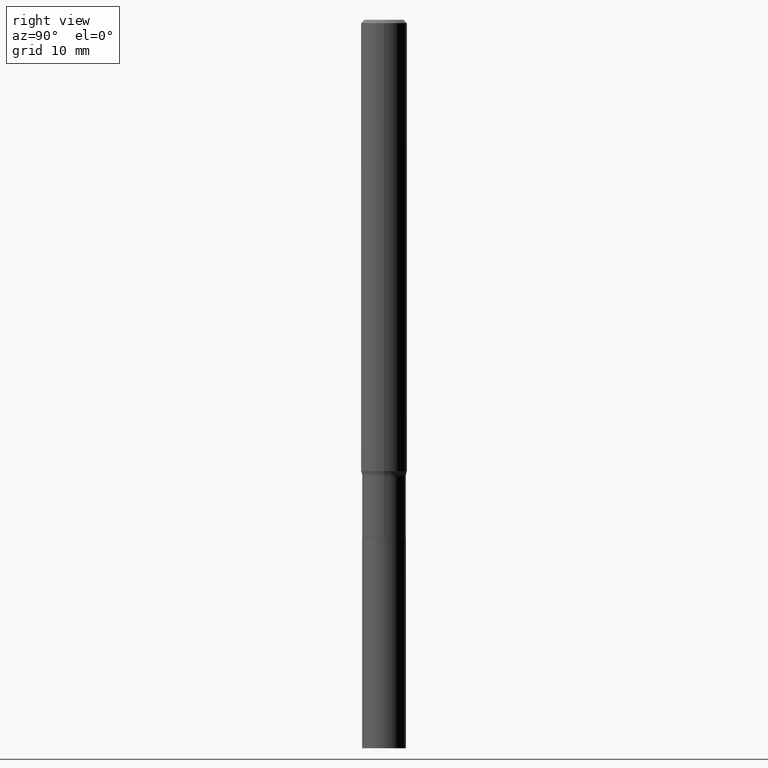
[diagram: clean part render]
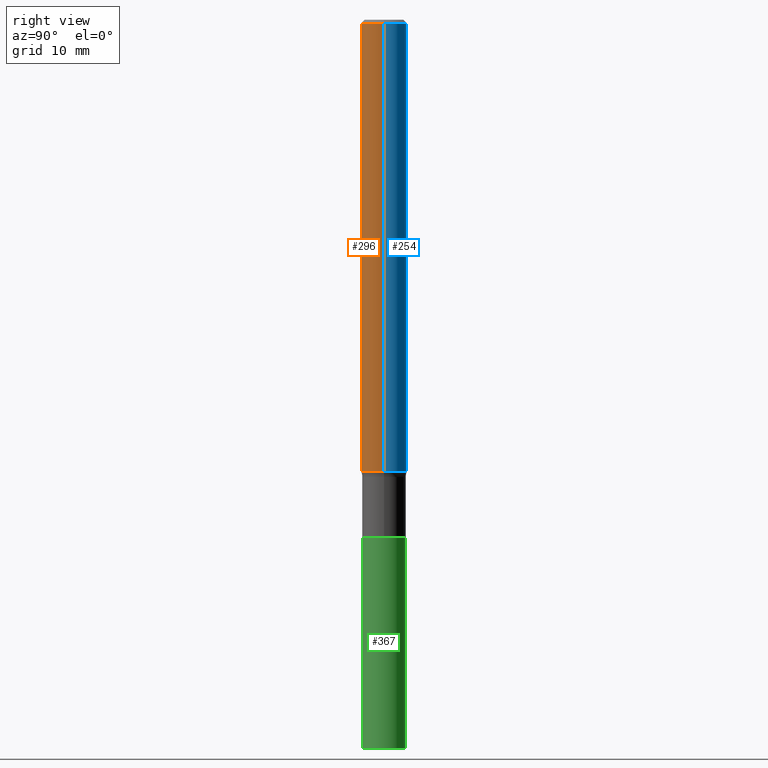
[diagram: same view with three faces highlighted in distinct colors, each labeled with its STEP entity id]
A machine part, right view with three faces highlighted in distinct colors.
Their STEP definitions:

[orange] entity #296 — the highlighted cylindrical surface (edge-blend (fillet) strip) has radius 2.9997 mm, axis along (-0, 0, 1).
#7 = DIRECTION ( 'NONE',  ( -2.445468806185136597E-29, 3.491481338843145583E-15, 1.000000000000000000 ) ) ;
#8 = CIRCLE ( 'NONE', #416, 0.1181000000000003020 ) ;
#30 = EDGE_LOOP ( 'NONE', ( #427, #458, #262, #256 ) ) ;
#31 = DIRECTION ( 'NONE',  ( -2.445468806185136877E-29, 3.491481338843145188E-15, 1.000000000000000000 ) ) ;
#40 = CYLINDRICAL_SURFACE ( 'NONE', #89, 0.1181000000000001632 ) ;
#42 = CARTESIAN_POINT ( 'NONE',  ( 5.667000345357114307E-29, -8.090974582455619643E-15, -2.317347222350170988 ) ) ;
#64 = VECTOR ( 'NONE', #31, 39.37007874015748143 ) ;
#73 = CARTESIAN_POINT ( 'NONE',  ( 0.1181000000000001632, -8.246878922347493473E-16, 5.758764772215008848E-30 ) ) ;
#89 = AXIS2_PLACEMENT_3D ( 'NONE', #339, #7, #222 ) ;
#95 = CIRCLE ( 'NONE', #292, 0.1181000000000000105 ) ;
#108 = CARTESIAN_POINT ( 'NONE',  ( -0.1181000000000001632, 8.391509709326794790E-16, -5.809262341591051491E-30 ) ) ;
#137 = VERTEX_POINT ( 'NONE', #147 ) ;
#145 = CARTESIAN_POINT ( 'NONE',  ( -0.1181000000000003020, -7.251823611522939079E-15, -2.317347222350170988 ) ) ;
#147 = CARTESIAN_POINT ( 'NONE',  ( 0.1181000000000003020, -8.915662474690369483E-15, -2.317347222350170988 ) ) ;
#161 = EDGE_CURVE ( 'NONE', #361, #240, #95, .T. ) ;
#197 = DIRECTION ( 'NONE',  ( -2.445468806185136597E-29, 3.491481338843145583E-15, 1.000000000000000000 ) ) ;
#222 = DIRECTION ( 'NONE',  ( 1.000000000000000000, -6.982962677686267499E-15, 4.876176775795936353E-29 ) ) ;
#240 = VERTEX_POINT ( 'NONE', #341 ) ;
#256 = ORIENTED_EDGE ( 'NONE', *, *, #161, .F. ) ;
#262 = ORIENTED_EDGE ( 'NONE', *, *, #278, .T. ) ;
#268 = EDGE_CURVE ( 'NONE', #366, #361, #305, .T. ) ;
#278 = EDGE_CURVE ( 'NONE', #137, #240, #392, .T. ) ;
#290 = DIRECTION ( 'NONE',  ( 1.000000000000000000, -6.982962677686271444E-15, 0.000000000000000000 ) ) ;
#292 = AXIS2_PLACEMENT_3D ( 'NONE', #382, #464, #418 ) ;
#296 = ADVANCED_FACE ( 'NONE', ( #335 ), #40, .T. ) ;
#304 = CARTESIAN_POINT ( 'NONE',  ( -0.1181000000000000105, -3.237262116253930779E-15, -0.01771500000000011607 ) ) ;
#305 = LINE ( 'NONE', #108, #64 ) ;
#318 = EDGE_CURVE ( 'NONE', #366, #137, #8, .T. ) ;
#335 = FACE_OUTER_BOUND ( 'NONE', #30, .T. ) ;
#339 = CARTESIAN_POINT ( 'NONE',  ( 0.000000000000000000, 0.000000000000000000, 0.000000000000000000 ) ) ;
#341 = CARTESIAN_POINT ( 'NONE',  ( 0.1181000000000000105, -8.865394841523548556E-16, -0.01771500000000011607 ) ) ;
#361 = VERTEX_POINT ( 'NONE', #304 ) ;
#366 = VERTEX_POINT ( 'NONE', #145 ) ;
#369 = DIRECTION ( 'NONE',  ( -2.445468806185136877E-29, 3.491481338843145188E-15, 1.000000000000000000 ) ) ;
#382 = CARTESIAN_POINT ( 'NONE',  ( 4.332147990156998495E-31, -6.185159191760672860E-17, -0.01771500000000011607 ) ) ;
#392 = LINE ( 'NONE', #73, #425 ) ;
#416 = AXIS2_PLACEMENT_3D ( 'NONE', #42, #197, #290 ) ;
#418 = DIRECTION ( 'NONE',  ( 1.000000000000000000, -6.982962677686265922E-15, 0.000000000000000000 ) ) ;
#425 = VECTOR ( 'NONE', #369, 39.37007874015748143 ) ;
#427 = ORIENTED_EDGE ( 'NONE', *, *, #268, .F. ) ;
#458 = ORIENTED_EDGE ( 'NONE', *, *, #318, .T. ) ;
#464 = DIRECTION ( 'NONE',  ( -2.445468806185136597E-29, 3.491481338843145583E-15, 1.000000000000000000 ) ) ;

[blue] entity #254 — the highlighted cylindrical surface (edge-blend (fillet) strip) has radius 2.9997 mm, axis along (-0, 0, 1).
#31 = DIRECTION ( 'NONE',  ( -2.445468806185136877E-29, 3.491481338843145188E-15, 1.000000000000000000 ) ) ;
#39 = DIRECTION ( 'NONE',  ( 1.000000000000000000, -6.982962677686267499E-15, 4.876176775795936353E-29 ) ) ;
#63 = ORIENTED_EDGE ( 'NONE', *, *, #245, .F. ) ;
#64 = VECTOR ( 'NONE', #31, 39.37007874015748143 ) ;
#73 = CARTESIAN_POINT ( 'NONE',  ( 0.1181000000000001632, -8.246878922347493473E-16, 5.758764772215008848E-30 ) ) ;
#87 = CARTESIAN_POINT ( 'NONE',  ( 5.667000345357114307E-29, -8.090974582455619643E-15, -2.317347222350170988 ) ) ;
#108 = CARTESIAN_POINT ( 'NONE',  ( -0.1181000000000001632, 8.391509709326794790E-16, -5.809262341591051491E-30 ) ) ;
#126 = EDGE_CURVE ( 'NONE', #137, #366, #215, .T. ) ;
#137 = VERTEX_POINT ( 'NONE', #147 ) ;
#138 = AXIS2_PLACEMENT_3D ( 'NONE', #328, #358, #39 ) ;
#145 = CARTESIAN_POINT ( 'NONE',  ( -0.1181000000000003020, -7.251823611522939079E-15, -2.317347222350170988 ) ) ;
#146 = ORIENTED_EDGE ( 'NONE', *, *, #126, .T. ) ;
#147 = CARTESIAN_POINT ( 'NONE',  ( 0.1181000000000003020, -8.915662474690369483E-15, -2.317347222350170988 ) ) ;
#156 = ORIENTED_EDGE ( 'NONE', *, *, #278, .F. ) ;
#187 = FACE_OUTER_BOUND ( 'NONE', #294, .T. ) ;
#207 = AXIS2_PLACEMENT_3D ( 'NONE', #87, #235, #337 ) ;
#215 = CIRCLE ( 'NONE', #207, 0.1181000000000003020 ) ;
#235 = DIRECTION ( 'NONE',  ( -2.445468806185136597E-29, 3.491481338843145583E-15, 1.000000000000000000 ) ) ;
#240 = VERTEX_POINT ( 'NONE', #341 ) ;
#245 = EDGE_CURVE ( 'NONE', #240, #361, #434, .T. ) ;
#254 = ADVANCED_FACE ( 'NONE', ( #187 ), #438, .T. ) ;
#264 = CARTESIAN_POINT ( 'NONE',  ( 4.332147990156998495E-31, -6.185159191760672860E-17, -0.01771500000000011607 ) ) ;
#268 = EDGE_CURVE ( 'NONE', #366, #361, #305, .T. ) ;
#278 = EDGE_CURVE ( 'NONE', #137, #240, #392, .T. ) ;
#294 = EDGE_LOOP ( 'NONE', ( #146, #463, #63, #156 ) ) ;
#304 = CARTESIAN_POINT ( 'NONE',  ( -0.1181000000000000105, -3.237262116253930779E-15, -0.01771500000000011607 ) ) ;
#305 = LINE ( 'NONE', #108, #64 ) ;
#328 = CARTESIAN_POINT ( 'NONE',  ( 0.000000000000000000, 0.000000000000000000, 0.000000000000000000 ) ) ;
#337 = DIRECTION ( 'NONE',  ( 1.000000000000000000, -6.982962677686271444E-15, 0.000000000000000000 ) ) ;
#341 = CARTESIAN_POINT ( 'NONE',  ( 0.1181000000000000105, -8.865394841523548556E-16, -0.01771500000000011607 ) ) ;
#358 = DIRECTION ( 'NONE',  ( -2.445468806185136597E-29, 3.491481338843145583E-15, 1.000000000000000000 ) ) ;
#361 = VERTEX_POINT ( 'NONE', #304 ) ;
#366 = VERTEX_POINT ( 'NONE', #145 ) ;
#369 = DIRECTION ( 'NONE',  ( -2.445468806185136877E-29, 3.491481338843145188E-15, 1.000000000000000000 ) ) ;
#380 = AXIS2_PLACEMENT_3D ( 'NONE', #264, #396, #399 ) ;
#392 = LINE ( 'NONE', #73, #425 ) ;
#396 = DIRECTION ( 'NONE',  ( -2.445468806185136597E-29, 3.491481338843145583E-15, 1.000000000000000000 ) ) ;
#399 = DIRECTION ( 'NONE',  ( 1.000000000000000000, -6.982962677686265922E-15, 0.000000000000000000 ) ) ;
#425 = VECTOR ( 'NONE', #369, 39.37007874015748143 ) ;
#434 = CIRCLE ( 'NONE', #380, 0.1181000000000000105 ) ;
#438 = CYLINDRICAL_SURFACE ( 'NONE', #138, 0.1181000000000001632 ) ;
#463 = ORIENTED_EDGE ( 'NONE', *, *, #268, .T. ) ;

[green] entity #367 — the highlighted cylindrical surface (edge-blend (fillet) strip) has radius 2.8499 mm, axis along (-0, 0, 1).
#15 = ORIENTED_EDGE ( 'NONE', *, *, #219, .F. ) ;
#18 = CARTESIAN_POINT ( 'NONE',  ( -7.834884124363077914E-16, -0.1122000000000130809, -3.740200000000000191 ) ) ;
#34 = VERTEX_POINT ( 'NONE', #400 ) ;
#54 = DIRECTION ( 'NONE',  ( -2.439359682835014967E-29, 3.500229951190227507E-15, 1.000000000000000000 ) ) ;
#61 = EDGE_CURVE ( 'NONE', #266, #34, #306, .T. ) ;
#69 = DIRECTION ( 'NONE',  ( -2.439359682835014967E-29, 3.500229951190227507E-15, 1.000000000000000000 ) ) ;
#76 = DIRECTION ( 'NONE',  ( -2.439359682835014967E-29, 3.500229951190227901E-15, 1.000000000000000000 ) ) ;
#80 = VECTOR ( 'NONE', #76, 39.37007874015748143 ) ;
#91 = DIRECTION ( 'NONE',  ( -6.982962677686265922E-15, -1.000000000000000000, 4.869604266781217263E-15 ) ) ;
#104 = ORIENTED_EDGE ( 'NONE', *, *, #143, .F. ) ;
#123 = CARTESIAN_POINT ( 'NONE',  ( 7.972289495228971524E-16, 0.1121999999999907238, -2.656200000000000561 ) ) ;
#143 = EDGE_CURVE ( 'NONE', #333, #34, #468, .T. ) ;
#160 = ORIENTED_EDGE ( 'NONE', *, *, #462, .T. ) ;
#167 = AXIS2_PLACEMENT_3D ( 'NONE', #220, #69, #182 ) ;
#168 = DIRECTION ( 'NONE',  ( -2.439359682835014967E-29, 3.500229951190227507E-15, 1.000000000000000000 ) ) ;
#182 = DIRECTION ( 'NONE',  ( -6.982962677686265133E-15, -1.000000000000000000, 4.869604266781217263E-15 ) ) ;
#190 = FACE_OUTER_BOUND ( 'NONE', #253, .T. ) ;
#204 = CARTESIAN_POINT ( 'NONE',  ( -7.834884124363341196E-16, -0.1122000000000092784, -2.656199999999999228 ) ) ;
#213 = LINE ( 'NONE', #460, #251 ) ;
#219 = EDGE_CURVE ( 'NONE', #430, #333, #213, .T. ) ;
#220 = CARTESIAN_POINT ( 'NONE',  ( 6.495654242988960253E-29, -9.274072732235163168E-15, -2.656200000000000117 ) ) ;
#251 = VECTOR ( 'NONE', #374, 39.37007874015748143 ) ;
#253 = EDGE_LOOP ( 'NONE', ( #160, #365, #104, #15 ) ) ;
#257 = CARTESIAN_POINT ( 'NONE',  ( 7.972289495229104644E-16, 0.1121999999999869629, -3.740200000000001079 ) ) ;
#263 = CYLINDRICAL_SURFACE ( 'NONE', #167, 0.1122000000000000081 ) ;
#266 = VERTEX_POINT ( 'NONE', #257 ) ;
#277 = DIRECTION ( 'NONE',  ( -6.982962677686265133E-15, -1.000000000000000000, 4.869604266781217263E-15 ) ) ;
#306 = LINE ( 'NONE', #123, #80 ) ;
#322 = CIRCLE ( 'NONE', #449, 0.1122000000000000219 ) ;
#333 = VERTEX_POINT ( 'NONE', #204 ) ;
#365 = ORIENTED_EDGE ( 'NONE', *, *, #61, .T. ) ;
#367 = ADVANCED_FACE ( 'NONE', ( #190 ), #263, .T. ) ;
#374 = DIRECTION ( 'NONE',  ( -2.439359682835014967E-29, 3.500229951190227901E-15, 1.000000000000000000 ) ) ;
#379 = CARTESIAN_POINT ( 'NONE',  ( 9.139920139182118548E-29, -1.306832199932537301E-14, -3.740200000000000635 ) ) ;
#400 = CARTESIAN_POINT ( 'NONE',  ( 7.972289495229238751E-16, 0.1121999999999907238, -2.656200000000000561 ) ) ;
#430 = VERTEX_POINT ( 'NONE', #18 ) ;
#440 = CARTESIAN_POINT ( 'NONE',  ( 6.495654242988960253E-29, -9.274072732235163168E-15, -2.656200000000000117 ) ) ;
#441 = AXIS2_PLACEMENT_3D ( 'NONE', #440, #168, #277 ) ;
#449 = AXIS2_PLACEMENT_3D ( 'NONE', #379, #54, #91 ) ;
#460 = CARTESIAN_POINT ( 'NONE',  ( -7.834884124363341196E-16, -0.1122000000000092784, -2.656199999999999228 ) ) ;
#462 = EDGE_CURVE ( 'NONE', #430, #266, #322, .T. ) ;
#468 = CIRCLE ( 'NONE', #441, 0.1122000000000000081 ) ;